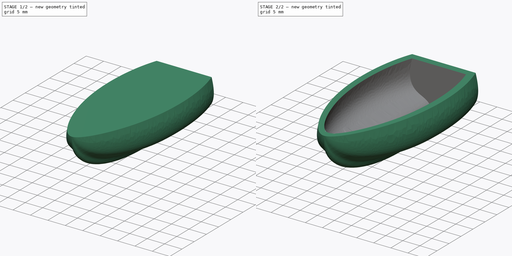
[diagram: build sequence overview — one tinted view per stage of 2, left to right]
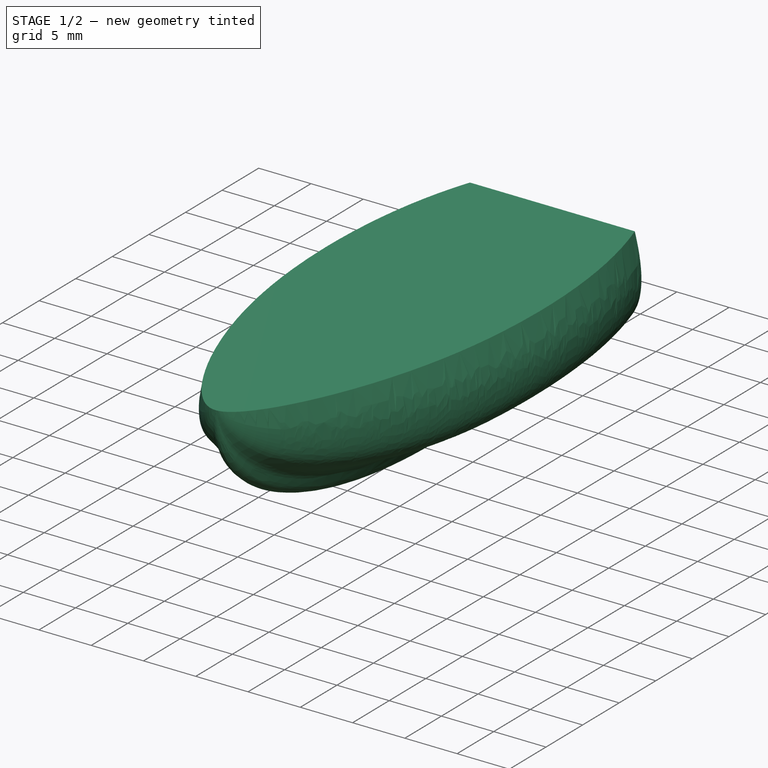
[diagram: stage 1 of 2 — iso view after this stage's code; geometry added in this stage tinted green]
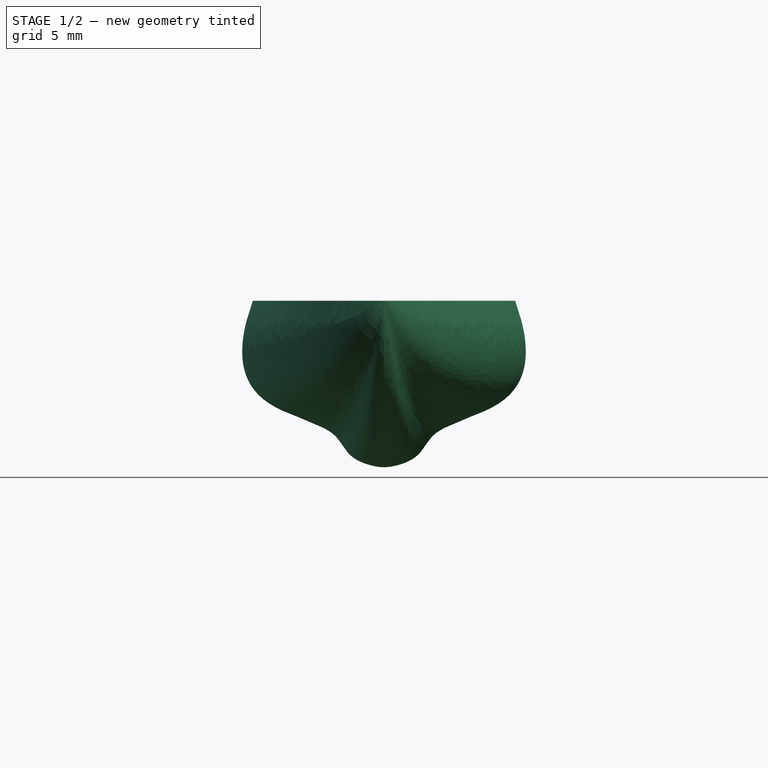
[diagram: stage 1 of 2 — front view after this stage's code; geometry added in this stage tinted green]
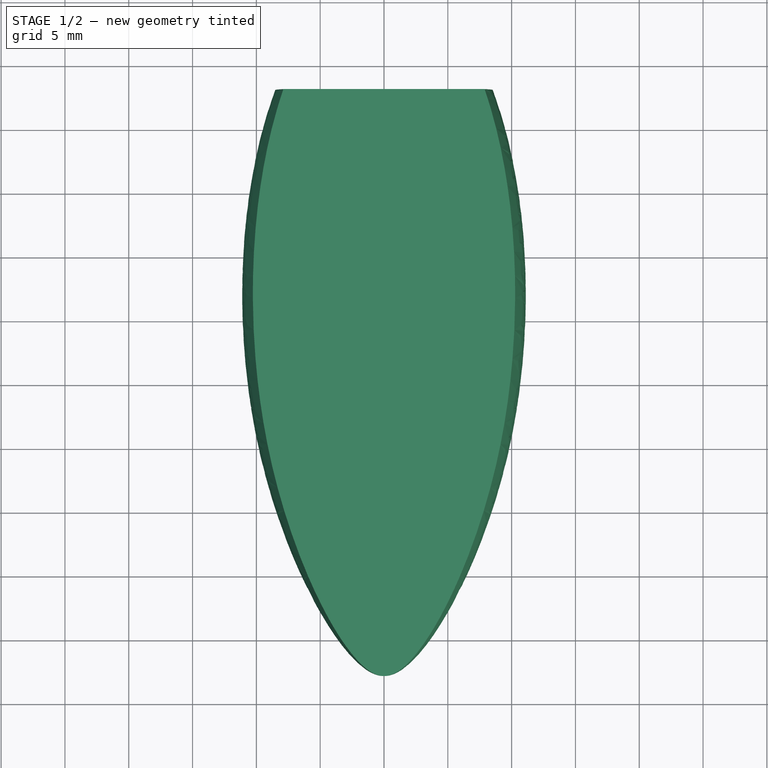
[diagram: stage 1 of 2 — top view after this stage's code; geometry added in this stage tinted green]
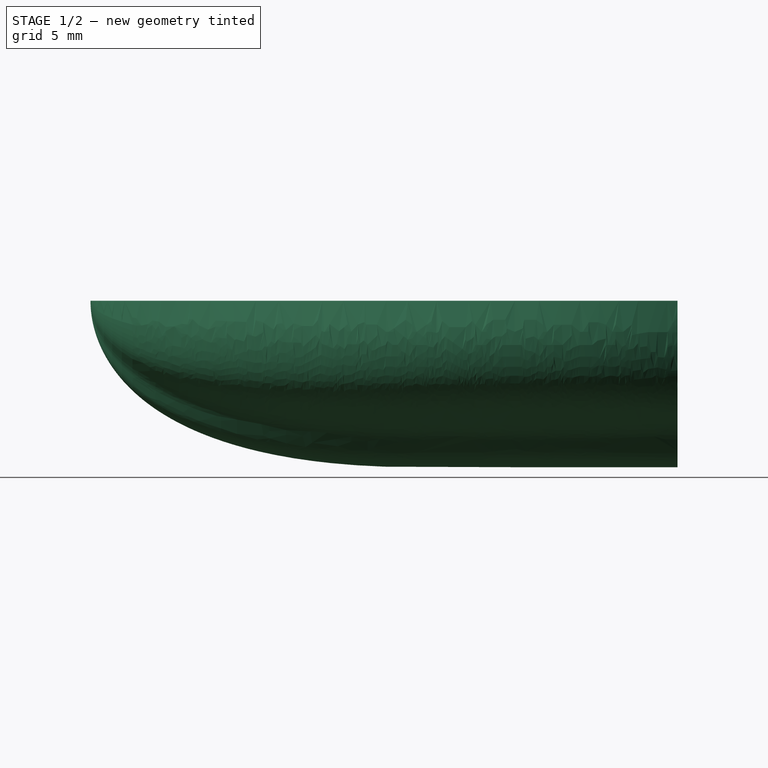
[diagram: stage 1 of 2 — right view after this stage's code; geometry added in this stage tinted green]
FCSTD DOCUMENT  (FreeCAD 1.0R38643 (Git))
Label: boat_curved_shapes
License: All rights reserved
LicenseURL: http://en.wikipedia.org/wiki/All_rights_reserved
objects: Sketcher::SketchObject×4, PartDesign::Body×2, Part::FeaturePython×2, Part::Cut×1, PartDesign::FeatureBase×1
note: 15 computed .brp shape members not serialized (recipe doc carries the construction recipe); baked Part::Feature solids carry a one-line shape summary decoded from their .brp

FEATURE [Sketcher::SketchObject] Sketch  label="hull_stern"
  ArcFitTolerance = 1e-06
  AttachmentOffset = pos=(0,0,-25) rot=(0,0,1;0rad)
  AttachmentSupport = -> [XZ_Plane]
  FullyConstrained = false
  MakeInternals = false
  MapMode = 5
  Placement = pos=(0,25,-5.6e-15) rot=(1,0,0;1.5708rad)
  sketch-geometry (27):
    g0-g6: Circle [constr] x7 (B-spline internal-alignment scaffolding for g7; pole/knot coordinates omitted)
    g7: BSplineCurve PolesCount=7 KnotsCount=5 Degree=3 IsPeriodic=0
    g8-g12: GeomPoint [constr] x5 (B-spline internal-alignment scaffolding for g7; pole/knot coordinates omitted)
    g13-g19: Circle [constr] x7 (B-spline internal-alignment scaffolding for g20; pole/knot coordinates omitted)
    g20: BSplineCurve PolesCount=7 KnotsCount=5 Degree=3 IsPeriodic=0
    g21-g25: GeomPoint [constr] x5 (B-spline internal-alignment scaffolding for g20; pole/knot coordinates omitted)
    g26: LineSegment StartX=-10 StartY=0 StartZ=0 EndX=10 EndY=0 EndZ=0
  constraints (17):
    c: Weight(g0) = 1
    c: Equal(g0, g1-g6) x6
    c: InternalAlignment(g0-g6 -> g7) x7
    c: InternalAlignment(g8-g12 -> g7) x5
    c: PointOnObject(g0,g-1)
    c: Horizontal(g5,g7)
    c: DistanceX(g7,g-1) = 10
    c: DistanceY(g7,g-1) = 15
    c: Weight(g13) = 1
    c: Equal(g13, g14-g19) x6
    c: InternalAlignment(g13-g19 -> g20) x7
    c: InternalAlignment(g21-g25 -> g20) x5
    c: Coincident(g26,g7)
    c: Coincident(g26,g20)
    c: Horizontal(g26)
    c: PointOnObject(g7,g-2)
    c: Coincident(g20,g7)
FEATURE [Sketcher::SketchObject] Sketch001  label="hull_bow"
  ArcFitTolerance = 1e-06
  AttachmentOffset = pos=(0,0,25) rot=(0,0,1;0rad)
  AttachmentSupport = -> [XZ_Plane]
  FullyConstrained = true
  MakeInternals = false
  MapMode = 5
  Placement = pos=(0,-25,5.6e-15) rot=(1,0,0;1.5708rad)
  sketch-geometry (2):
    g0: ArcOfCircle CenterX=0 CenterY=0 CenterZ=0 NormalX=0 NormalY=0 NormalZ=1 AngleXU=0 Radius=0.1 StartAngle=3.14159 EndAngle=6.28319
    g1: LineSegment StartX=-0.1 StartY=0 StartZ=0 EndX=0.1 EndY=0 EndZ=0
  constraints (6):
    c: PointOnObject(g0,g-1)
    c: PointOnObject(g0,g-1)
    c: Coincident(g0,g-1)
    c: Radius(g0) = 0.1
    c: Coincident(g1,g0)
    c: Coincident(g1,g0)
FEATURE [Sketcher::SketchObject] Sketch002  label="hull_xy"
  ArcFitTolerance = 1e-06
  AttachmentSupport = -> [XY_Plane]
  ExternalGeometry = -> [Sketch,Sketch001]
  FullyConstrained = false
  MakeInternals = false
  MapMode = 5
  sketch-geometry (18):
    g0: Circle [constr] CenterX=-10 CenterY=25 CenterZ=0 NormalX=0 NormalY=0 NormalZ=1 AngleXU=0 Radius=1
    g1: Circle [constr] CenterX=-0.1 CenterY=-25 CenterZ=0 NormalX=0 NormalY=0 NormalZ=1 AngleXU=0 Radius=1
    g2: BSplineCurve PolesCount=5 KnotsCount=3 Degree=3 IsPeriodic=0
    g3: GeomPoint [constr] X=-10 Y=25 Z=0
    g4: GeomPoint [constr] X=-0.1 Y=-25 Z=0
    g5: Circle [constr] CenterX=-13.5323 CenterY=16.2252 CenterZ=0 NormalX=0 NormalY=0 NormalZ=1 AngleXU=0 Radius=1
    g6: Circle [constr] CenterX=-14.5076 CenterY=-7.35803 CenterZ=0 NormalX=0 NormalY=0 NormalZ=1 AngleXU=0 Radius=1
    g7: Circle [constr] CenterX=-3.22709 CenterY=-25 CenterZ=0 NormalX=0 NormalY=0 NormalZ=1 AngleXU=0 Radius=1
    g8: GeomPoint [constr] X=-11.2664 Y=-6.56607 Z=0
    g9: Circle [constr] CenterX=10 CenterY=25 CenterZ=0 NormalX=0 NormalY=0 NormalZ=1 AngleXU=0 Radius=1
    g10: BSplineCurve PolesCount=5 KnotsCount=3 Degree=3 IsPeriodic=0
    g11: GeomPoint [constr] X=10 Y=25 Z=0
    g12: GeomPoint [constr] X=0.1 Y=-25 Z=0
    g13: Circle [constr] CenterX=13.5323 CenterY=16.2252 CenterZ=0 NormalX=0 NormalY=0 NormalZ=1 AngleXU=0 Radius=1
    g14: Circle [constr] CenterX=14.5076 CenterY=-7.35803 CenterZ=0 NormalX=0 NormalY=0 NormalZ=1 AngleXU=0 Radius=1
    g15: Circle [constr] CenterX=3.22709 CenterY=-25 CenterZ=0 NormalX=0 NormalY=0 NormalZ=1 AngleXU=0 Radius=1
    g16: GeomPoint [constr] X=11.2664 Y=-6.56607 Z=0
    g17: Circle [constr] CenterX=0.1 CenterY=-25 CenterZ=0 NormalX=0 NormalY=0 NormalZ=1 AngleXU=0 Radius=1
  constraints (29):
    c: Weight(g0) = 1
    c: Equal(g0,g1)
    c: InternalAlignment(g0,g2)
    c: InternalAlignment(g1,g2)
    c: InternalAlignment(g3,g2)
    c: InternalAlignment(g4,g2)
    c: Coincident(g0,g-3)
    c: Coincident(g1,g-4)
    c: InternalAlignment(g5,g2)
    c: Equal(g5,g0)
    c: InternalAlignment(g6,g2)
    c: Equal(g6,g0)
    c: InternalAlignment(g7,g2)
    c: Equal(g7,g0)
    c: InternalAlignment(g8,g2)
    c: Horizontal(g7,g2)
    c: Weight(g9) = 1
    c: Equal(g9,g17)
    c: InternalAlignment(g9,g10)
    c: InternalAlignment(g17,g10)
    c: InternalAlignment(g11,g10)
    c: InternalAlignment(g12,g10)
    c: InternalAlignment(g13,g10)
    c: Equal(g13,g9)
    c: InternalAlignment(g14,g10)
    c: Equal(g14,g9)
    c: InternalAlignment(g15,g10)
    c: Equal(g15,g9)
    c: InternalAlignment(g16,g10)
FEATURE [Sketcher::SketchObject] Sketch003  label="hull_yz"
  ArcFitTolerance = 1e-06
  AttachmentSupport = -> [YZ_Plane]
  ExternalGeometry = -> [Sketch001,Sketch]
  FullyConstrained = true
  MakeInternals = false
  MapMode = 5
  Placement = pos=(0,0,0) rot=(0.57735,0.57735,0.57735;2.0944rad)
  sketch-geometry (9):
    g0-g3: Circle [constr] x4 (B-spline internal-alignment scaffolding for g4; pole/knot coordinates omitted)
    g4: BSplineCurve PolesCount=4 KnotsCount=2 Degree=3 IsPeriodic=0
    g5: GeomPoint [constr] X=-25 Y=-0.1 Z=0
    g6: GeomPoint [constr] X=3 Y=-15 Z=0
    g7: LineSegment StartX=3 StartY=-15 StartZ=0 EndX=25 EndY=-15 EndZ=0
    g8: LineSegment StartX=-25 StartY=0 StartZ=0 EndX=25 EndY=0 EndZ=0
  constraints (17):
    c: Weight(g0) = 1
    c: Equal(g0,g1)
    c: Equal(g0,g2)
    c: Equal(g0,g3)
    c: InternalAlignment(g0-g3 -> g4) x4
    c: InternalAlignment(g5,g4)
    c: InternalAlignment(g6,g4)
    c: Coincident(g0,g-3)
    c: Coincident(g7,g-4)
    c: Horizontal(g7)
    c: Tangent(g4,g7) = -1.5708
    c: Vertical(g4,g1)
    c: DistanceY(g1,g4) = 4
    c: Distance(g2,g-2) = 22
    c: DistanceX(g7,g7) = 22
    c: Coincident(g8,g-3)
    c: Coincident(g8,g-4)
FEATURE [PartDesign::Body] Body
  AllowCompound = false
  Group = -> [Sketch,Sketch001,Sketch002,Sketch003]
  Origin = -> Origin
FEATURE [Part::FeaturePython] CurvedArray  # WARN: FeaturePython — macro-defined, semantics opaque (R4)
  Axis = (0,1,0)
  Base = -> Sketch
  Distribution = 0
  DistributionReverse = false
  Hullcurves = -> [Sketch002,Sketch003]
  Items = 30
  OffsetEnd = 0
  OffsetStart = 0
  Solid = true
  Surface = false
  Twist = 0
FEATURE [Part::FeaturePython] Clone  label="CurvedArray001"  # Draft clone (typed FeaturePython)
  AttacherType = Attacher::AttachEngine3D
  Fuse = false
  Objects = -> [CurvedArray]
  Scale = (0.85,0.92,0.87)
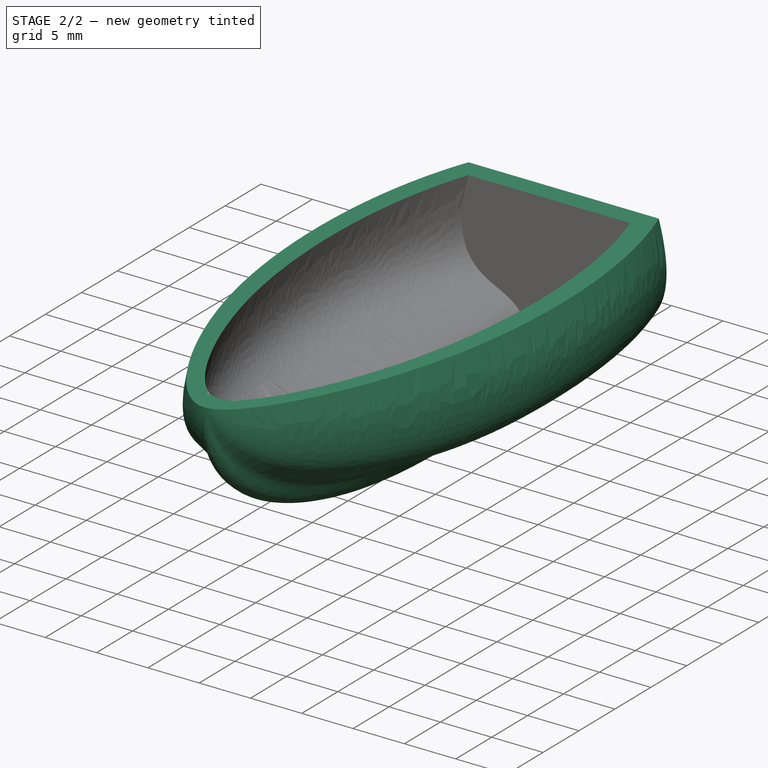
[diagram: stage 2 of 2 — iso view after this stage's code; geometry added in this stage tinted green]
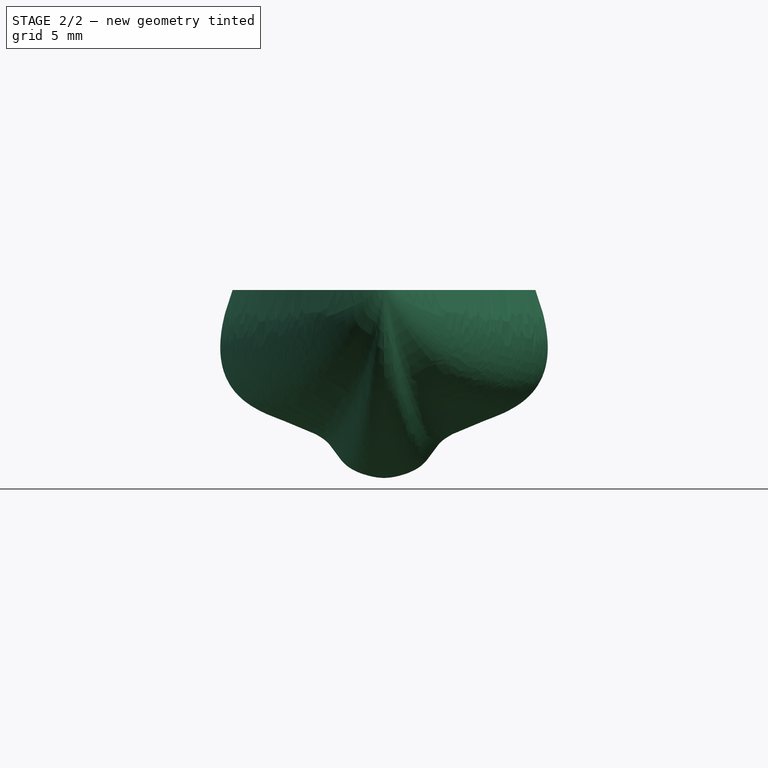
[diagram: stage 2 of 2 — front view after this stage's code; geometry added in this stage tinted green]
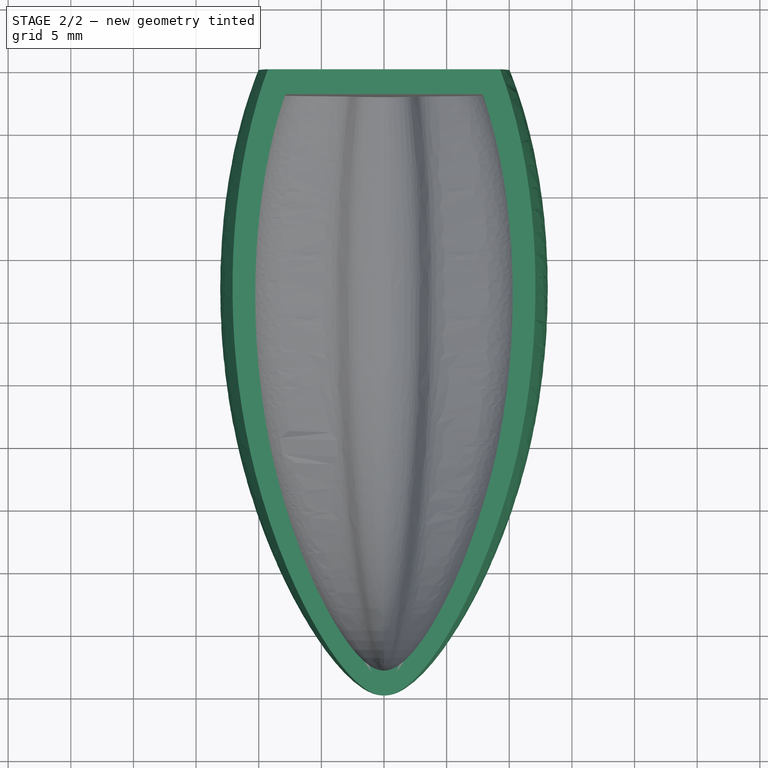
[diagram: stage 2 of 2 — top view after this stage's code; geometry added in this stage tinted green]
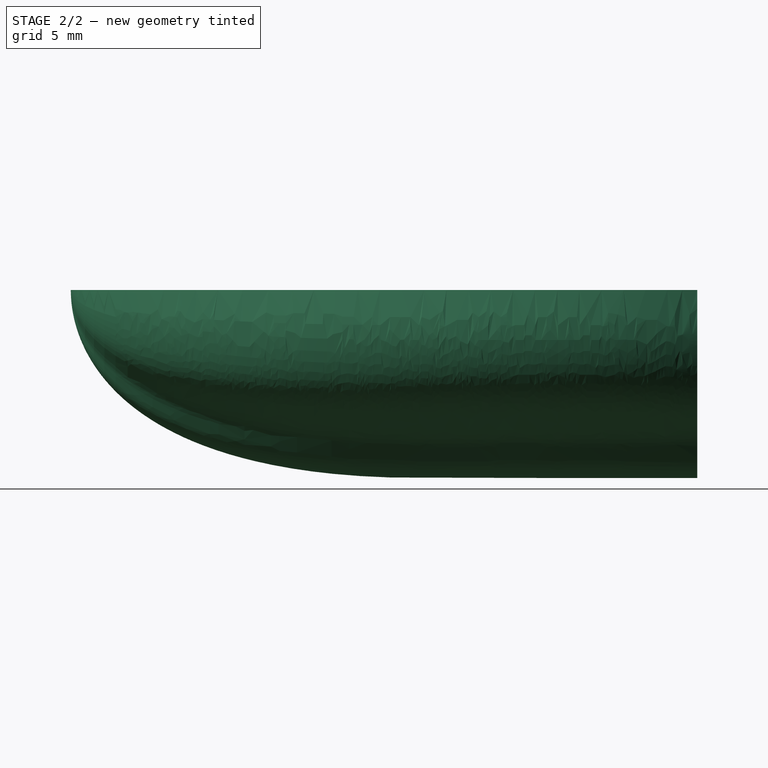
[diagram: stage 2 of 2 — right view after this stage's code; geometry added in this stage tinted green]
FEATURE [Part::Cut] Cut
  Base = -> CurvedArray
  Tool = -> Clone
FEATURE [PartDesign::FeatureBase] BaseFeature
  BaseFeature = -> Cut
  Suppressed = false
FEATURE [PartDesign::Body] Body001
  AllowCompound = false
  BaseFeature = -> Cut
  Group = -> [BaseFeature]
  Origin = -> Origin001
  Tip = -> BaseFeature
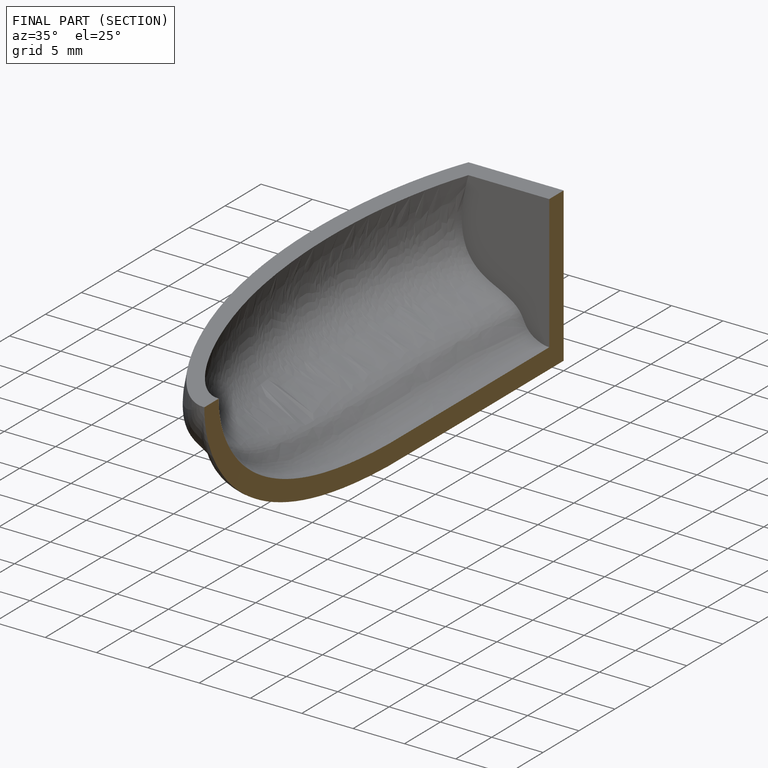
[diagram: finished part — half-section view (interior)]
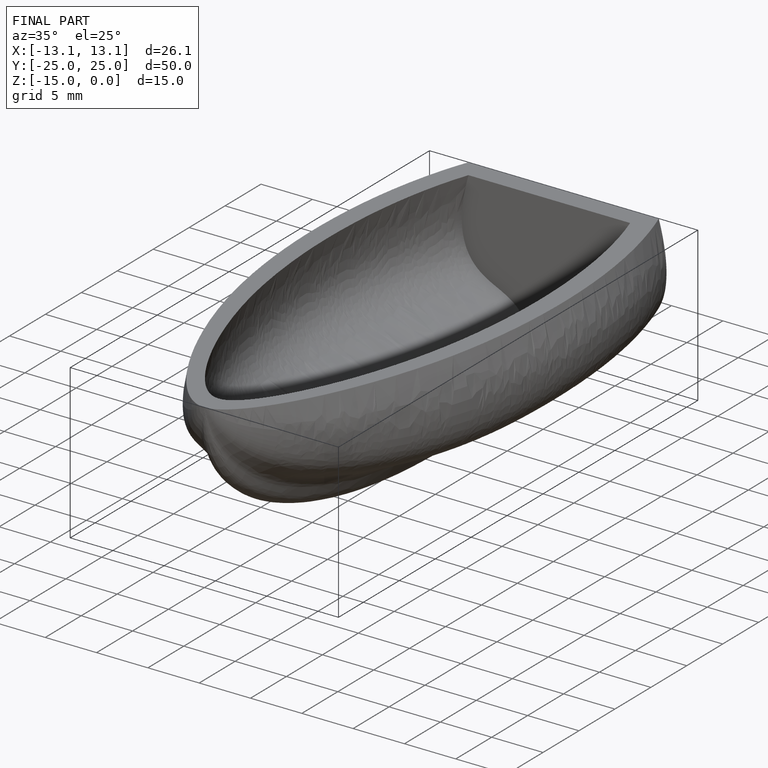
[diagram: finished part — iso view with bounding-box wireframe]
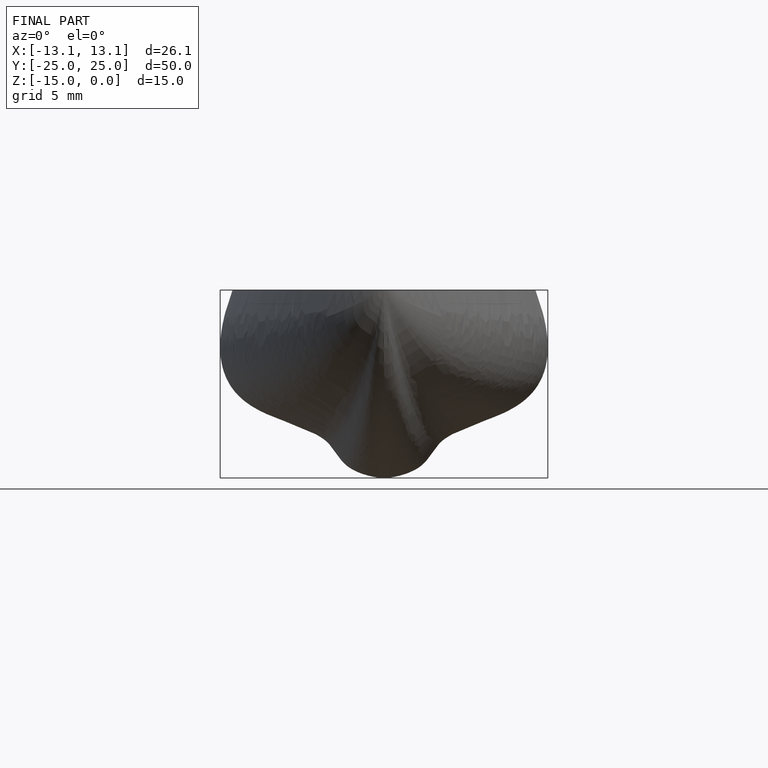
[diagram: finished part — front view with bounding-box wireframe]
